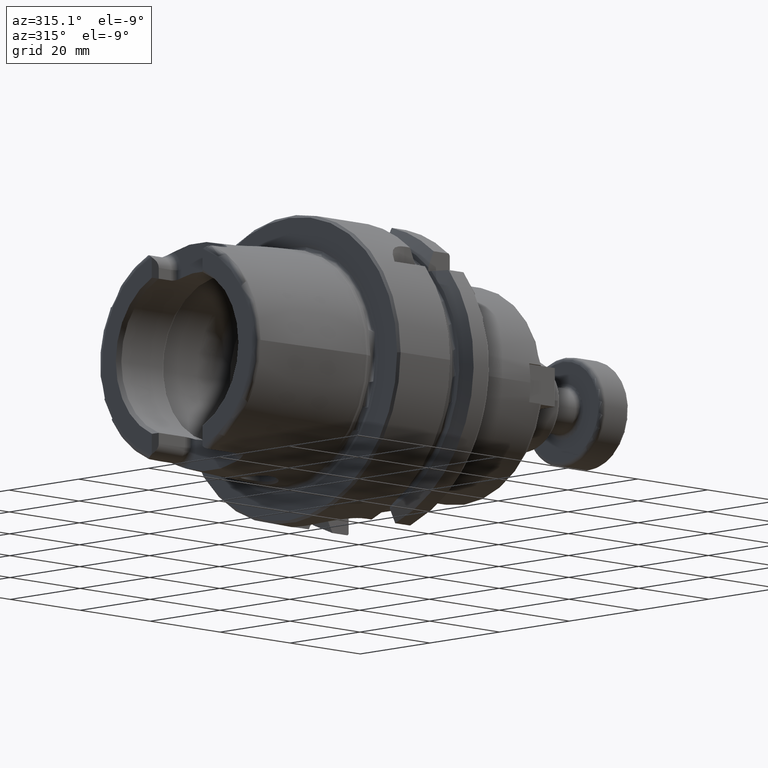
[diagram: clean part render]
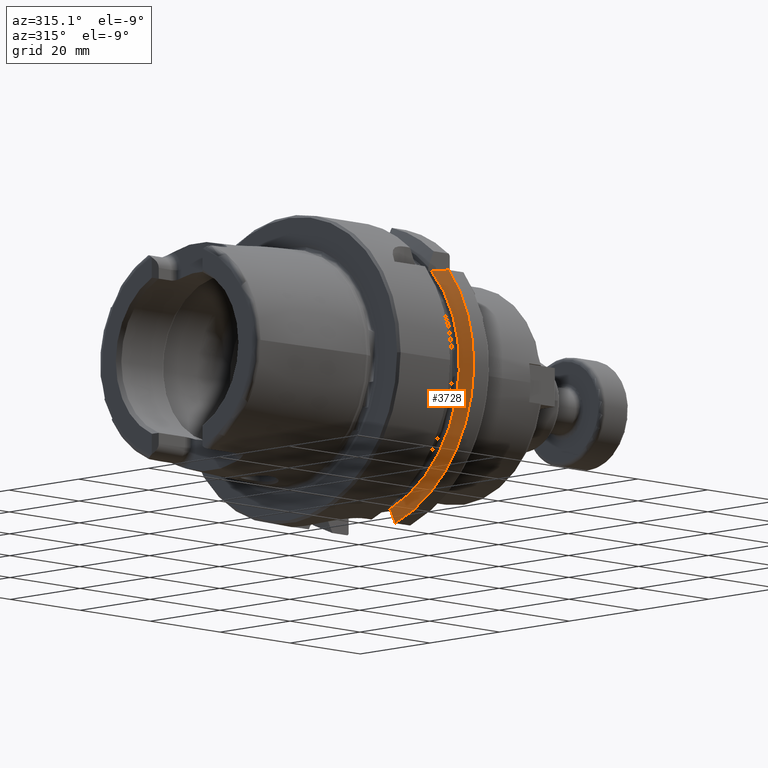
[diagram: same view with one face highlighted and labeled with its STEP entity id]
A machine part, auxiliary view. The second image highlights one B-rep face of the part: STEP entity #3728.
In plain terms, the highlighted conical surface has half-angle 60 deg.
Its self-contained STEP definition (entity closure, byte-faithful):
#559=(
BOUNDED_CURVE()
B_SPLINE_CURVE(2,(#6637,#6638,#6639),.UNSPECIFIED.,.F.,.F.)
B_SPLINE_CURVE_WITH_KNOTS((3,3),(0.,0.378858277140999),.UNSPECIFIED.)
CURVE()
GEOMETRIC_REPRESENTATION_ITEM()
RATIONAL_B_SPLINE_CURVE((1.,1.00166199353854,1.))
REPRESENTATION_ITEM('')
);
#565=(
BOUNDED_CURVE()
B_SPLINE_CURVE(2,(#6777,#6778,#6779),.UNSPECIFIED.,.F.,.F.)
B_SPLINE_CURVE_WITH_KNOTS((3,3),(0.,0.311314369989023),.UNSPECIFIED.)
CURVE()
GEOMETRIC_REPRESENTATION_ITEM()
RATIONAL_B_SPLINE_CURVE((1.,1.00102053193598,1.))
REPRESENTATION_ITEM('')
);
#925=FACE_OUTER_BOUND('',#1126,.T.);
#1126=EDGE_LOOP('',(#3134,#3135,#3136,#3137));
#1711=CIRCLE('',#4161,28.8975952641916);
#1725=CIRCLE('',#4194,31.5);
#1999=VERTEX_POINT('',#6633);
#2001=VERTEX_POINT('',#6636);
#2023=VERTEX_POINT('',#6733);
#2028=VERTEX_POINT('',#6775);
#2367=EDGE_CURVE('',#2001,#1999,#559,.T.);
#2397=EDGE_CURVE('',#1999,#2023,#1711,.T.);
#2407=EDGE_CURVE('',#2023,#2028,#565,.T.);
#2454=EDGE_CURVE('',#2001,#2028,#1725,.T.);
#3134=ORIENTED_EDGE('',*,*,#2367,.T.);
#3135=ORIENTED_EDGE('',*,*,#2397,.T.);
#3136=ORIENTED_EDGE('',*,*,#2407,.T.);
#3137=ORIENTED_EDGE('',*,*,#2454,.F.);
#3625=CONICAL_SURFACE('',#4201,30.1987976320958,1.0471975511966);
#3728=ADVANCED_FACE('',(#925),#3625,.T.);
#4161=AXIS2_PLACEMENT_3D('',#6735,#4895,#4896);
#4194=AXIS2_PLACEMENT_3D('',#6987,#4981,#4982);
#4201=AXIS2_PLACEMENT_3D('',#7002,#4997,#4998);
#4895=DIRECTION('center_axis',(1.,0.,0.));
#4896=DIRECTION('ref_axis',(0.,0.,-1.));
#4981=DIRECTION('center_axis',(1.,0.,0.));
#4982=DIRECTION('ref_axis',(0.,0.,-1.));
#4997=DIRECTION('center_axis',(1.,0.,0.));
#4998=DIRECTION('ref_axis',(0.,-0.966819045705046,-0.255462194584608));
#6633=CARTESIAN_POINT('',(19.875,-20.8583559288126,20.));
#6636=CARTESIAN_POINT('',(21.3774990747593,-24.3361870472759,20.));
#6637=CARTESIAN_POINT('Ctrl Pts',(21.3774990747593,-24.3361870472759,20.));
#6638=CARTESIAN_POINT('Ctrl Pts',(20.5684390397668,-22.5223452916166,20.));
#6639=CARTESIAN_POINT('Ctrl Pts',(19.875,-20.8583559288126,20.));
#6733=CARTESIAN_POINT('',(19.875,-9.,-27.4603534582684));
#6735=CARTESIAN_POINT('Origin',(19.875,0.,0.));
#6775=CARTESIAN_POINT('',(21.3774990747593,-9.,-30.1869176962472));
#6777=CARTESIAN_POINT('Ctrl Pts',(19.875,-9.,-27.4603534582684));
#6778=CARTESIAN_POINT('Ctrl Pts',(20.5907174110267,-9.,-28.7648946319029));
#6779=CARTESIAN_POINT('Ctrl Pts',(21.3774990747593,-9.,-30.1869176962472));
#6987=CARTESIAN_POINT('Origin',(21.3774990747593,0.,0.));
#7002=CARTESIAN_POINT('Origin',(20.6262495373797,0.,0.));